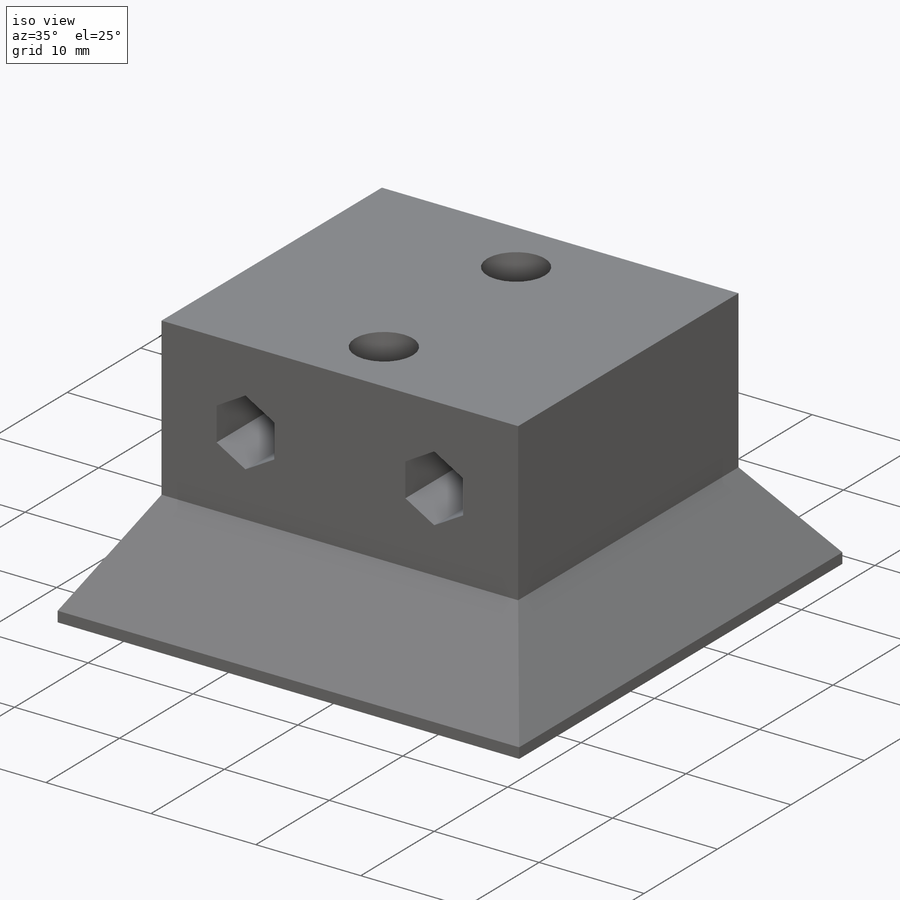
[diagram: iso view]
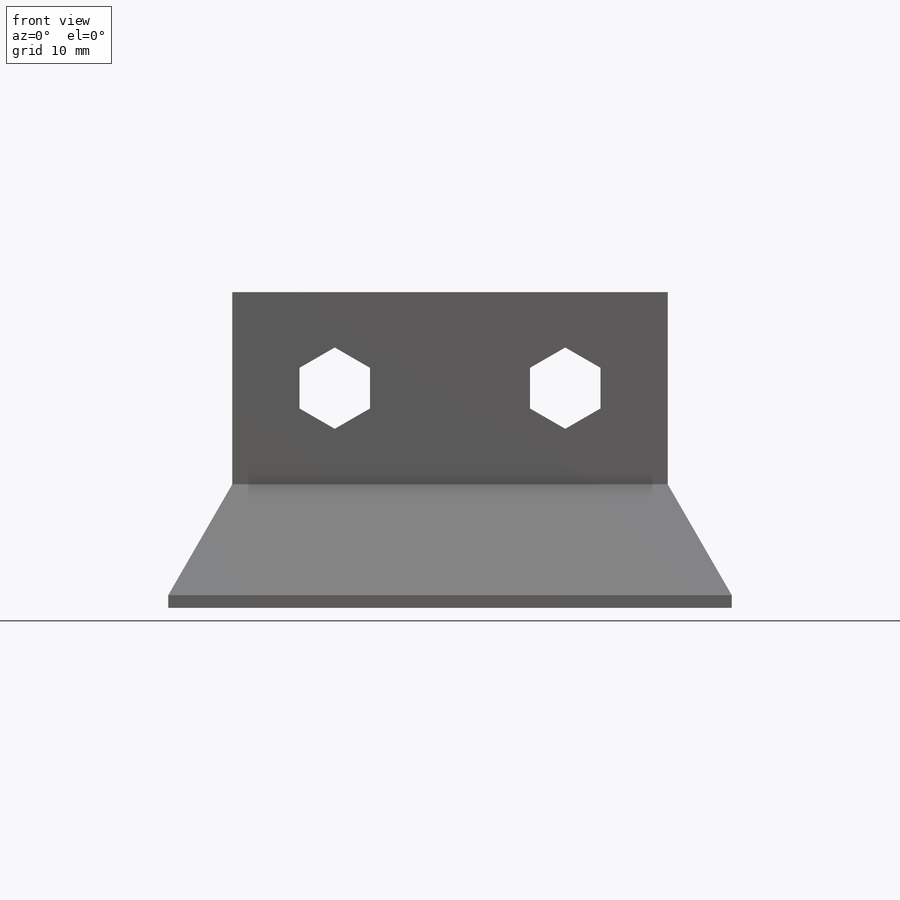
[diagram: front view]
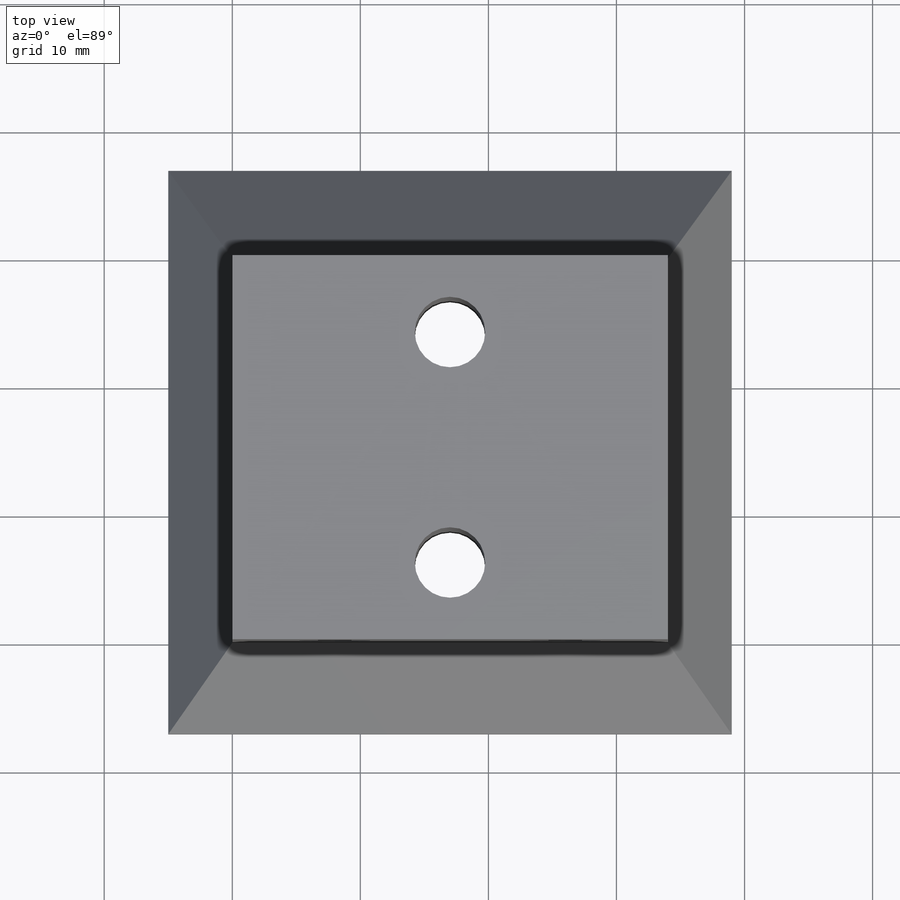
[diagram: top view]
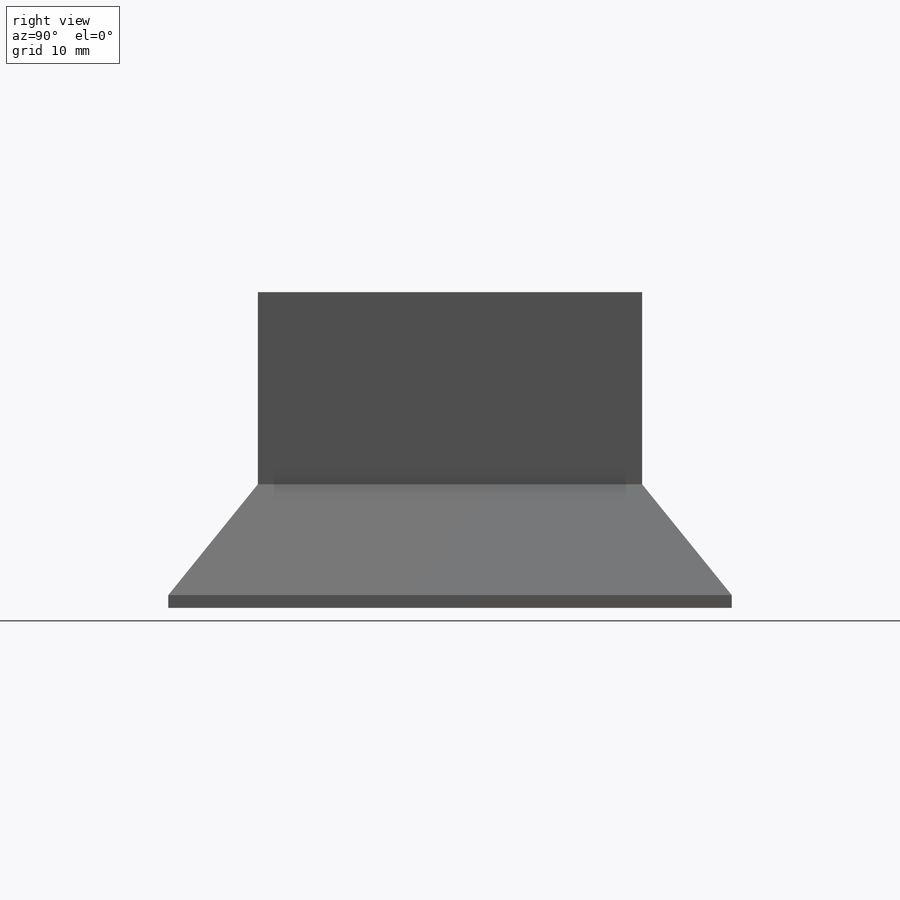
[diagram: right view]
SOLIDWORKS PART (.sldprt)
format: sldprt  version: not decoded by parser v0  size: 223,744 bytes
history: native  units: mm
features: sketch x5, cut_extrude x3, extrude x2, material x1 (+12 scaffold rows collapsed)
feature tree (23):
  scaffold x12  (default folders/planes/origin — collapsed)
  material  "Material <not specified>"
  sketch  "Sketch1"  dims[D1=34.0mm D2=15.0mm]
  extrude  "Boss-Extrude1"  Depth=30mm
  sketch  "Sketch3"  dims[c1.D1=~5.839626mm c2.D1=120.0deg c2.D2=~6.501332mm c3.D2=120.0deg c3.D3=10.0mm c3.D4=~45.547005mm c4.D3=44.0mm c4.D4=1.0mm c4.D5=8.5mm c4.D6=~11.360423mm c5.D3=44.0mm c5.D5=9.0mm]
  extrude  "Boss-Extrude2"  Depth=37mm
  sketch  "Sketch5"  dims[D1=7.5mm D2=7.5mm D3=8.0mm D4=5.5mm D5=5.5mm D6=8.0mm D7=18.0mm]
  cut_extrude  "Cut-Extrude2"  [1 undecoded]
  sketch  "Sketch6"  dims[c1.D1=7.0mm c2.D1=~131.927024deg c3.D1=6.5mm c4.D1=~129.82643deg c5.D1=6.5mm]
  cut_extrude  "Cut-Extrude3"  [1 undecoded]
  sketch  "Sketch7"  dims[D1=5.5mm D2=5.5mm D3=17.0mm D4=6.0mm D5=6.0mm]
  cut_extrude  "Cut-Extrude4"  [1 undecoded]
decode coverage: 7 of 10 modeling features carry decoded parameters
note: ~ marks probable driven/reference dimensions
note: 3 parameter values undecoded
summary: no parameter record found for 3 features
note: suppression state not decoded; provenance and decode notes live in map.json
